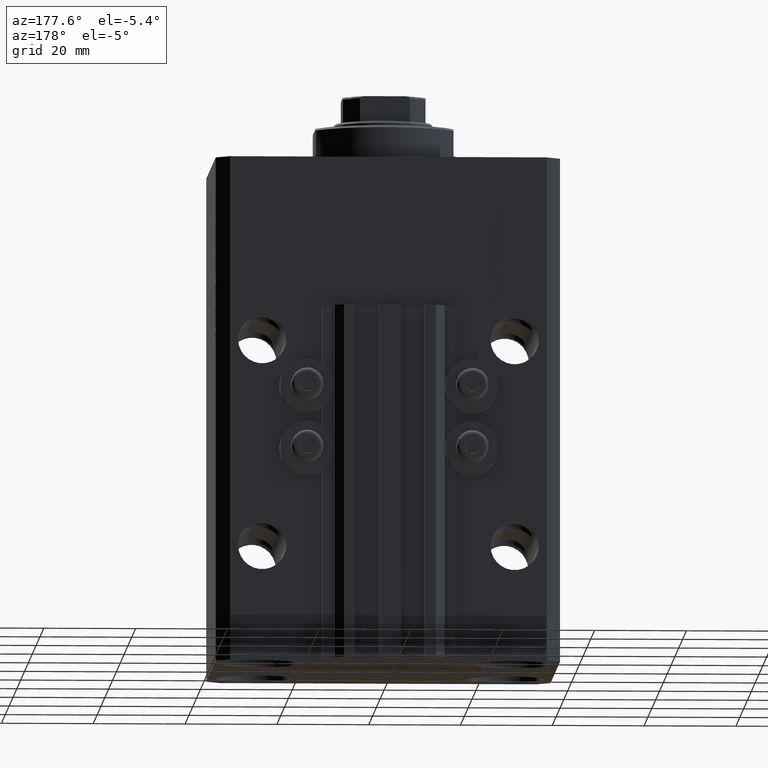
[diagram: clean part render]
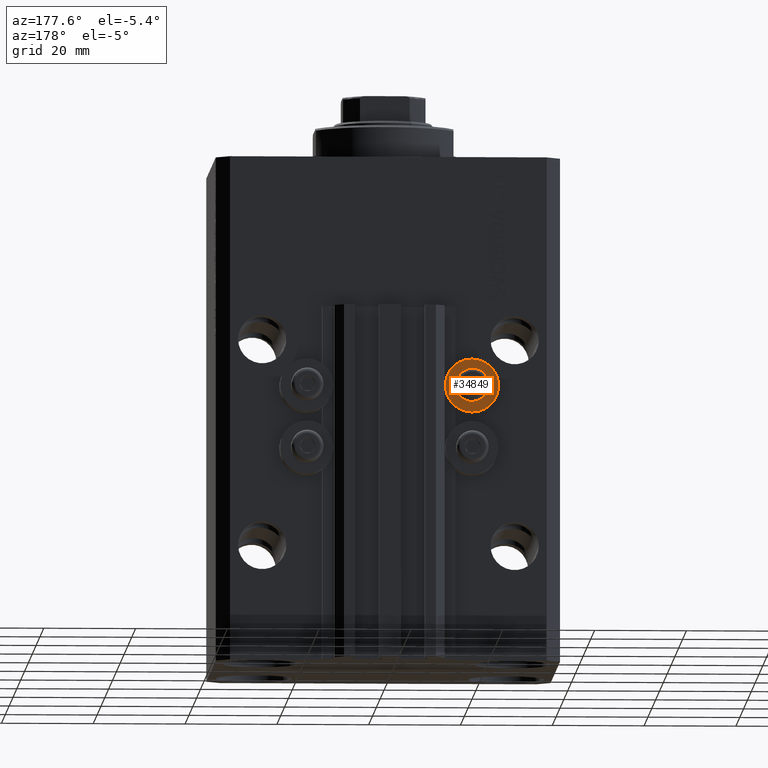
[diagram: same view with one face highlighted and labeled with its STEP entity id]
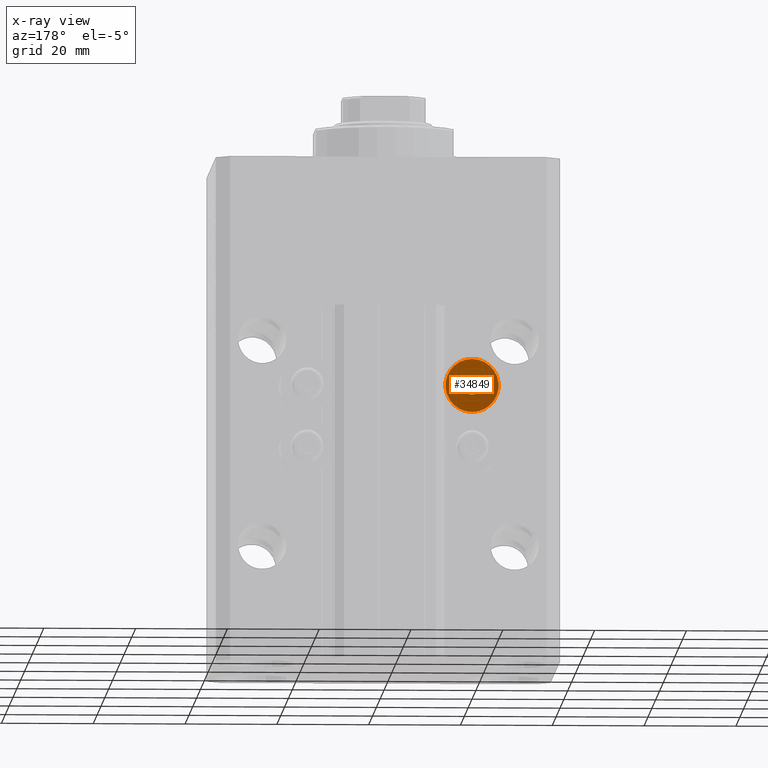
[diagram: x-ray of the same camera — body ghosted, the highlighted face saturated]
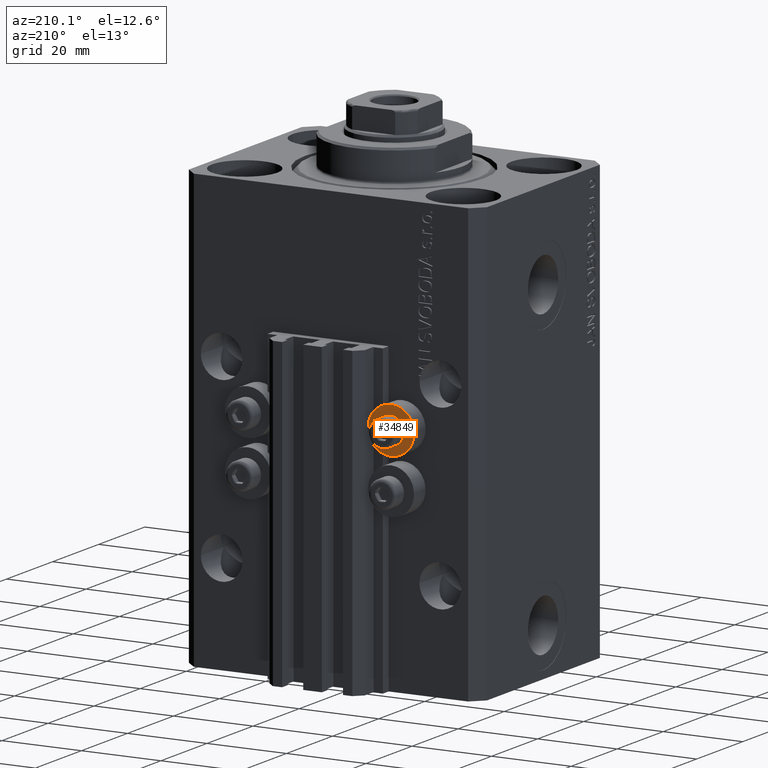
[diagram: same view with one face highlighted and labeled with its STEP entity id]
A machine part, auxiliary view. The second image highlights one B-rep face of the part: STEP entity #34849.
The next image is the same camera in x-ray: the body ghosted, the highlighted face saturated — about 0% of this face is hidden behind the body in this view.
A second angle (auxiliary view) of the same face is appended — the face is thin or edge-on in the first view.
In plain terms, the highlighted planar face has unit normal (0, -1, 0).
Its self-contained STEP definition (entity closure, byte-faithful):
#1313 = CARTESIAN_POINT ( 'NONE',  ( -18.00000000000000355, 32.49999999996100541, -48.39999999999999858 ) ) ;
#1952 = ORIENTED_EDGE ( 'NONE', *, *, #30579, .T. ) ;
#2085 = ORIENTED_EDGE ( 'NONE', *, *, #22243, .F. ) ;
#4261 = VERTEX_POINT ( 'NONE', #1313 ) ;
#8819 = AXIS2_PLACEMENT_3D ( 'NONE', #43128, #10334, #20394 ) ;
#9389 = FACE_OUTER_BOUND ( 'NONE', #22271, .T. ) ;
#10023 = AXIS2_PLACEMENT_3D ( 'NONE', #42893, #39748, #10557 ) ;
#10027 = ORIENTED_EDGE ( 'NONE', *, *, #34334, .F. ) ;
#10334 = DIRECTION ( 'NONE',  ( 0.000000000000000000, -1.000000000000000000, 0.000000000000000000 ) ) ;
#10557 = DIRECTION ( 'NONE',  ( 0.000000000000000000, 0.000000000000000000, 1.000000000000000000 ) ) ;
#12095 = DIRECTION ( 'NONE',  ( 0.000000000000000000, 0.000000000000000000, 1.000000000000000000 ) ) ;
#16909 = EDGE_CURVE ( 'NONE', #34929, #19624, #17475, .T. ) ;
#17475 = CIRCLE ( 'NONE', #39645, 5.799999999999999822 ) ;
#19474 = AXIS2_PLACEMENT_3D ( 'NONE', #19738, #41762, #12095 ) ;
#19624 = VERTEX_POINT ( 'NONE', #26256 ) ;
#19738 = CARTESIAN_POINT ( 'NONE',  ( -18.00000000000000355, 32.49999999996100541, -50.39999999999999858 ) ) ;
#20394 = DIRECTION ( 'NONE',  ( 0.000000000000000000, -0.000000000000000000, -1.000000000000000000 ) ) ;
#22243 = EDGE_CURVE ( 'NONE', #46718, #4261, #29101, .T. ) ;
#22271 = EDGE_LOOP ( 'NONE', ( #1952, #28238 ) ) ;
#23657 = CARTESIAN_POINT ( 'NONE',  ( -18.00000000000000355, 32.49999999996100541, -50.39999999999999858 ) ) ;
#23919 = AXIS2_PLACEMENT_3D ( 'NONE', #23657, #31071, #27237 ) ;
#26256 = CARTESIAN_POINT ( 'NONE',  ( -18.00000000000000355, 32.49999999996100541, -44.60000000000000142 ) ) ;
#27237 = DIRECTION ( 'NONE',  ( 0.000000000000000000, 0.000000000000000000, 1.000000000000000000 ) ) ;
#28238 = ORIENTED_EDGE ( 'NONE', *, *, #16909, .T. ) ;
#29101 = CIRCLE ( 'NONE', #10023, 2.000000000000001776 ) ;
#29108 = DIRECTION ( 'NONE',  ( -0.000000000000000000, 1.000000000000000000, -0.000000000000000000 ) ) ;
#29576 = CARTESIAN_POINT ( 'NONE',  ( -18.00000000000000355, 32.49999999996100541, -50.39999999999999858 ) ) ;
#30579 = EDGE_CURVE ( 'NONE', #19624, #34929, #44572, .T. ) ;
#31071 = DIRECTION ( 'NONE',  ( -0.000000000000000000, 1.000000000000000000, -0.000000000000000000 ) ) ;
#33233 = CIRCLE ( 'NONE', #19474, 2.000000000000001776 ) ;
#34334 = EDGE_CURVE ( 'NONE', #4261, #46718, #33233, .T. ) ;
#34523 = FACE_BOUND ( 'NONE', #45270, .T. ) ;
#34849 = ADVANCED_FACE ( 'NONE', ( #34523, #9389 ), #46262, .F. ) ;
#34929 = VERTEX_POINT ( 'NONE', #39061 ) ;
#36303 = DIRECTION ( 'NONE',  ( 0.000000000000000000, 0.000000000000000000, 1.000000000000000000 ) ) ;
#37040 = CARTESIAN_POINT ( 'NONE',  ( -18.00000000000000355, 32.49999999996100541, -52.40000000000000568 ) ) ;
#39061 = CARTESIAN_POINT ( 'NONE',  ( -18.00000000000000355, 32.49999999996100541, -56.20000000000000284 ) ) ;
#39645 = AXIS2_PLACEMENT_3D ( 'NONE', #29576, #29108, #36303 ) ;
#39748 = DIRECTION ( 'NONE',  ( 0.000000000000000000, 1.000000000000000000, 0.000000000000000000 ) ) ;
#41762 = DIRECTION ( 'NONE',  ( 0.000000000000000000, 1.000000000000000000, 0.000000000000000000 ) ) ;
#42893 = CARTESIAN_POINT ( 'NONE',  ( -18.00000000000000355, 32.49999999996100541, -50.39999999999999858 ) ) ;
#43128 = CARTESIAN_POINT ( 'NONE',  ( -12.20000000000000284, 32.49999999996100541, -50.39999999999999858 ) ) ;
#44572 = CIRCLE ( 'NONE', #23919, 5.799999999999999822 ) ;
#45270 = EDGE_LOOP ( 'NONE', ( #10027, #2085 ) ) ;
#46262 = PLANE ( 'NONE',  #8819 ) ;
#46718 = VERTEX_POINT ( 'NONE', #37040 ) ;